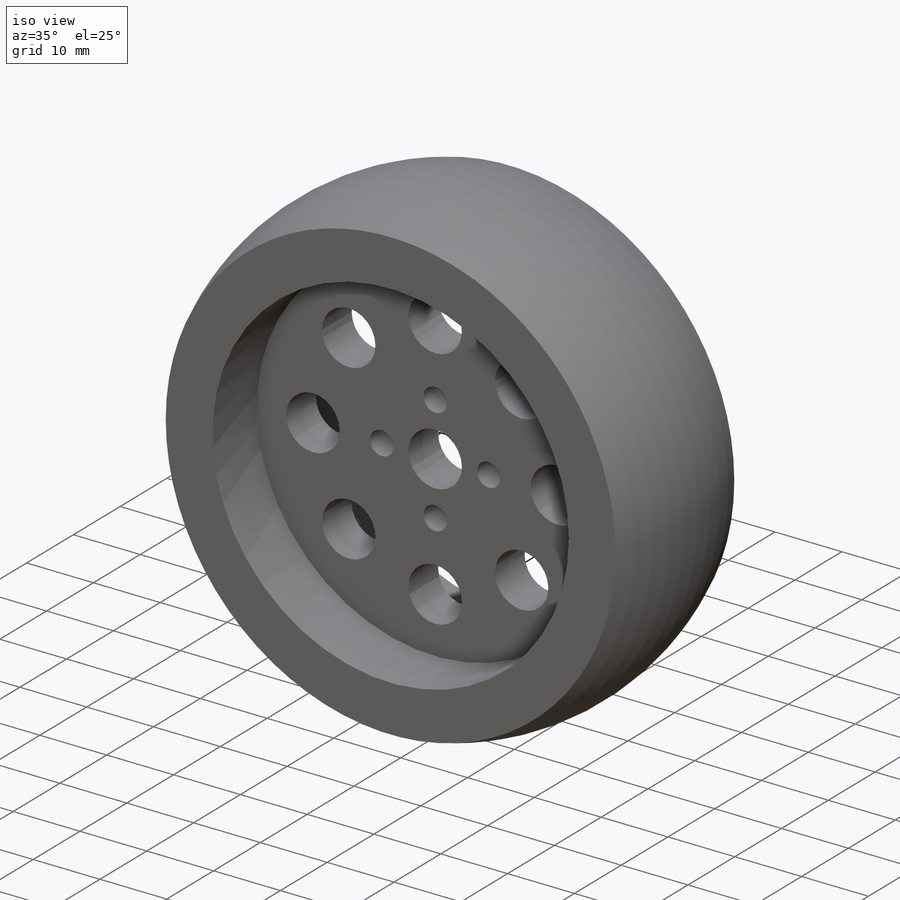
[diagram: iso view]
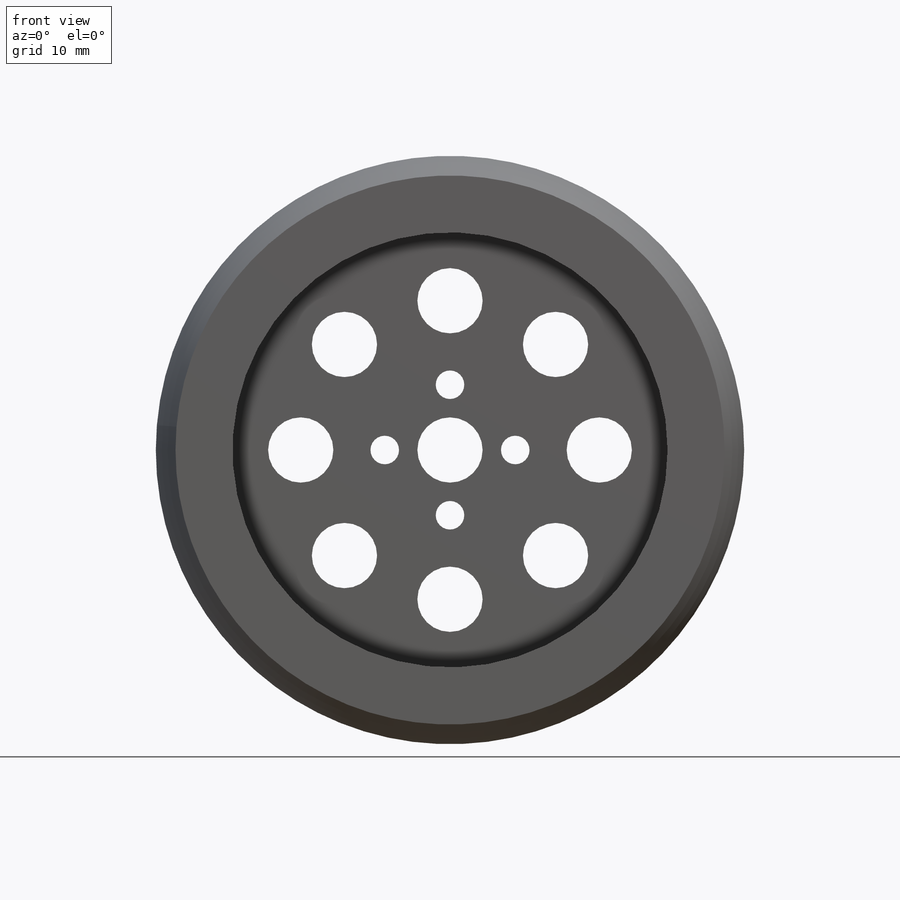
[diagram: front view]
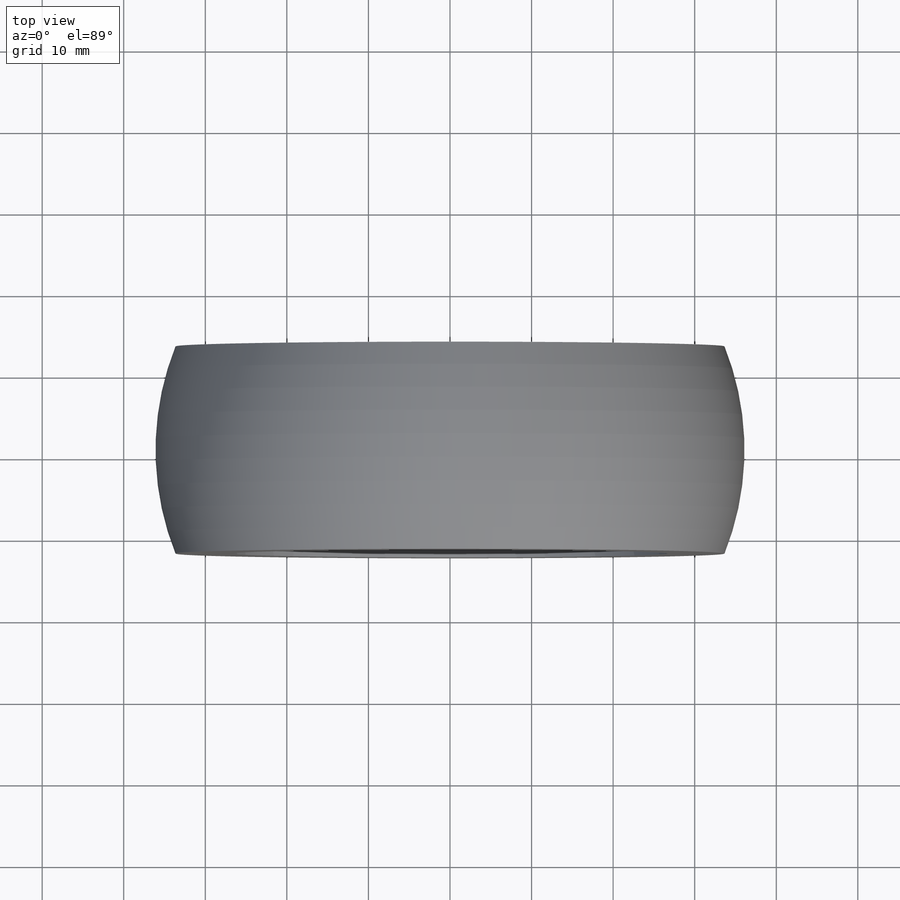
[diagram: top view]
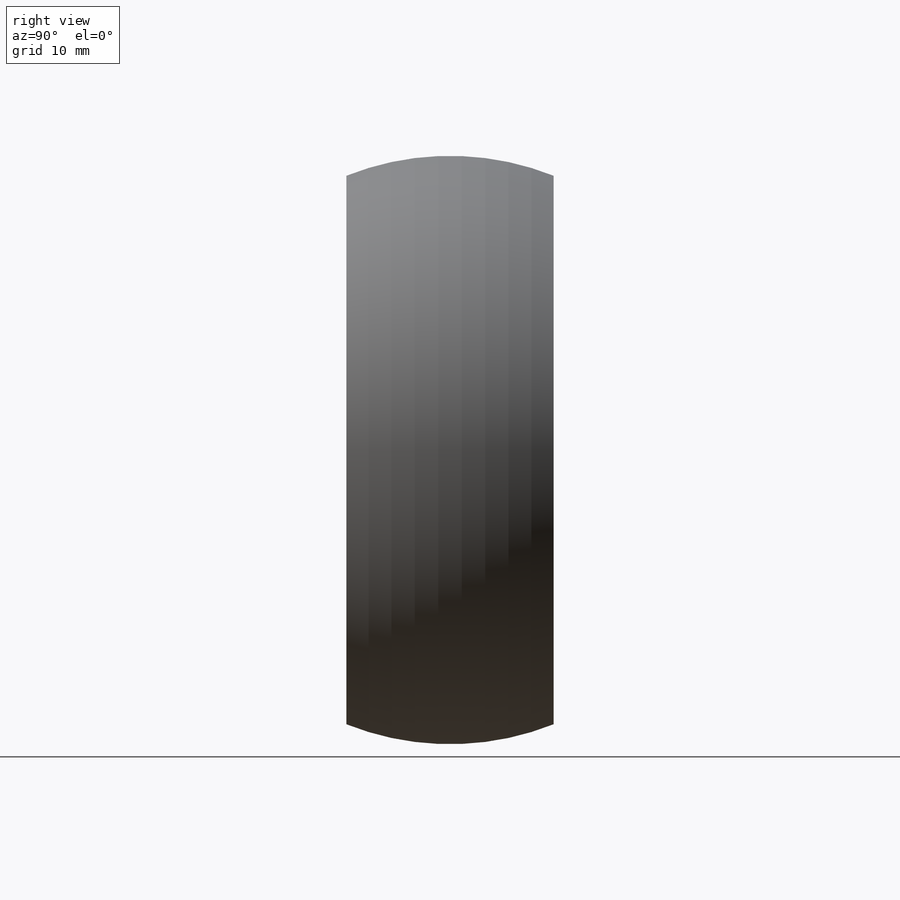
[diagram: right view]
SOLIDWORKS PART (.sldprt)
format: sldprt  version: not decoded by parser v0  size: 299,520 bytes
history: native  units: mm
features: sketch x11, cut_extrude x7, extrude x3, material x1, sweep x1 (+17 scaffold rows collapsed)
feature tree (40):
  scaffold x17  (default folders/planes/origin — collapsed)
  material  "Nylon"
  sketch  "Sketch1"  dims[D1=63.5mm]
  extrude  "Extrude1"  Depth=21.082mm
  sketch  "Sketch2"  dims[D1=53.34mm]
  cut_extrude  "Cut-Extrude1"  Depth=7.366mm
  sketch  "Sketch3"  dims[D1=53.34mm]
  cut_extrude  "Cut-Extrude2"  Depth=7.366mm
  sketch  "Sketch5"  dims[D1=67.31mm]
  extrude  "Extrude3"  Depth=2.159mm
  sketch  "Sketch6"  dims[D1=53.34mm]
  cut_extrude  "Cut-Extrude3"  [1 undecoded]
  sketch  "Sketch7"  dims[D1=67.31mm]
  extrude  "Extrude4"  Depth=2.159mm
  sketch  "Sketch8"  dims[D1=53.34mm]
  cut_extrude  "Cut-Extrude4"  [1 undecoded]
  sketch  "3DSketch2"
  sweep  "Sweep2"
  sketch  "Sketch10"  dims[D1=8.0mm D2=3.5mm D3=3.5mm D4=3.5mm D5=3.5mm D6=8.0mm D7=8.0mm D8=8.0mm D9=8.0mm]
  cut_extrude  "Cut-Extrude5"  [1 undecoded]
  sketch  "Sketch11"  dims[D1=8.0mm D2=8.0mm D3=8.0mm D4=8.0mm D5=18.3mm D6=18.3mm D7=18.3mm D8=18.3mm D9=18.3mm]
  cut_extrude  "Cut-Extrude6"  [1 undecoded]
  sketch  "Sketch12"  dims[D1=8.0mm D2=8.0mm D3=8.0mm D4=8.0mm D5=18.3mm D6=18.3mm D7=18.3mm D8=18.3mm]
  cut_extrude  "Cut-Extrude7"  [1 undecoded]
decode coverage: 15 of 22 modeling features carry decoded parameters
note: 5 parameter values undecoded
summary: no parameter record found for 5 features
note: suppression state not decoded; provenance and decode notes live in map.json
